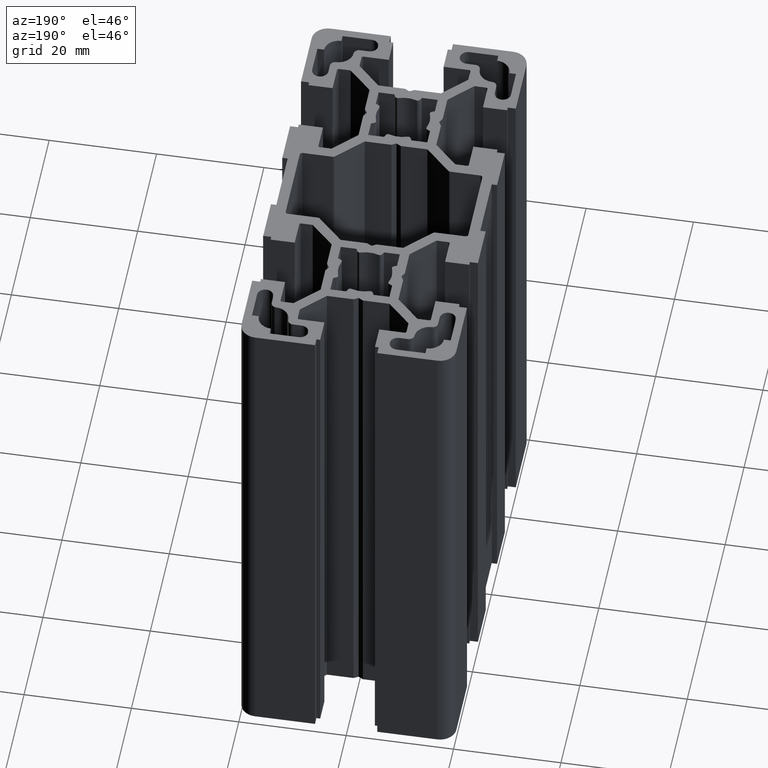
[diagram: clean part render]
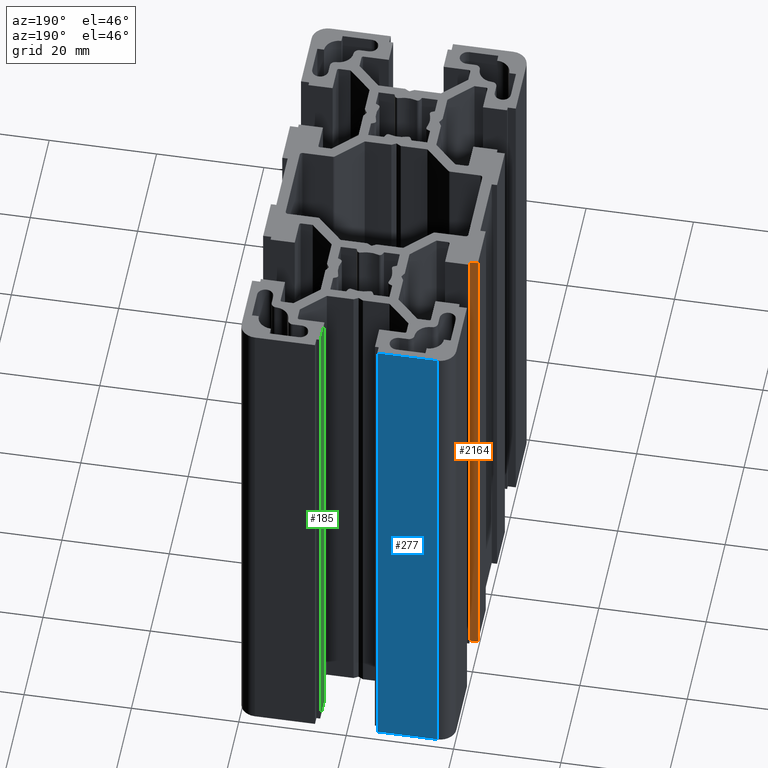
[diagram: same view with three faces highlighted in distinct colors, each labeled with its STEP entity id]
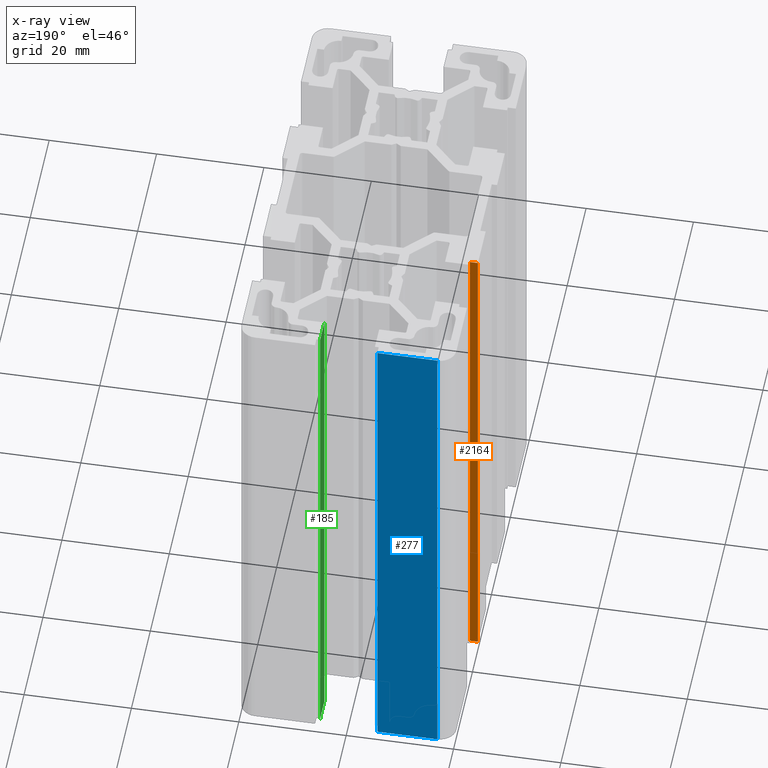
[diagram: x-ray of the same camera — body ghosted, the three highlighted faces saturated]
A machine part, auxiliary view with three faces highlighted in distinct colors.
The next image is the same camera in x-ray (body ghosted, the three faces saturated) — at least one of them is partly hidden behind the body in this view.
Their STEP definitions:

[orange] entity #2164 — the highlighted planar face has unit normal (0, -1, 0).
#1685 = VERTEX_POINT ( 'NONE', #6071 ) ;
#1686 = VERTEX_POINT ( 'NONE', #6070 ) ;
#1688 = EDGE_CURVE ( 'NONE', #1685, #1686, #6063, .T. ) ;
#2145 = ORIENTED_EDGE ( 'NONE', *, *, #2156, .T. ) ;
#2156 = EDGE_CURVE ( 'NONE', #2806, #1685, #6890, .T. ) ;
#2160 = ORIENTED_EDGE ( 'NONE', *, *, #1688, .T. ) ;
#2161 = ORIENTED_EDGE ( 'NONE', *, *, #2165, .F. ) ;
#2162 = EDGE_LOOP ( 'NONE', ( #2160, #2161, #2167, #2145 ) ) ;
#2164 = ADVANCED_FACE ( 'NONE', ( #6891 ), #6885, .F. ) ;
#2165 = EDGE_CURVE ( 'NONE', #2809, #1686, #6876, .T. ) ;
#2167 = ORIENTED_EDGE ( 'NONE', *, *, #2810, .F. ) ;
#2806 = VERTEX_POINT ( 'NONE', #7847 ) ;
#2809 = VERTEX_POINT ( 'NONE', #7834 ) ;
#2810 = EDGE_CURVE ( 'NONE', #2806, #2809, #7835, .T. ) ;
#6060 = DIRECTION ( 'NONE',  ( -1.000000000000000000, 0.0000000000000000000, 0.0000000000000000000 ) ) ;
#6061 = VECTOR ( 'NONE', #6060, 1000.000000000000000 ) ;
#6062 = CARTESIAN_POINT ( 'NONE',  ( -18.50000000000000000, 14.19999980926514000, 0.0000000000000000000 ) ) ;
#6063 = LINE ( 'NONE', #6062, #6061 ) ;
#6070 = CARTESIAN_POINT ( 'NONE',  ( -20.00000000000000000, 14.19999980926514000, 0.0000000000000000000 ) ) ;
#6071 = CARTESIAN_POINT ( 'NONE',  ( -18.50000000000000000, 14.19999980926514000, 0.0000000000000000000 ) ) ;
#6873 = DIRECTION ( 'NONE',  ( -0.0000000000000000000, -0.0000000000000000000, -1.000000000000000000 ) ) ;
#6874 = VECTOR ( 'NONE', #6873, 1000.000000000000000 ) ;
#6875 = CARTESIAN_POINT ( 'NONE',  ( -20.00000000000000000, 14.19999980926514000, 100.0000000000000000 ) ) ;
#6876 = LINE ( 'NONE', #6875, #6874 ) ;
#6877 = DIRECTION ( 'NONE',  ( 0.0000000000000000000, -0.0000000000000000000, -1.000000000000000000 ) ) ;
#6878 = DIRECTION ( 'NONE',  ( 0.0000000000000000000, -1.000000000000000000, 0.0000000000000000000 ) ) ;
#6879 = CARTESIAN_POINT ( 'NONE',  ( -18.50000000000000000, 14.19999980926514000, 100.0000000000000000 ) ) ;
#6884 = AXIS2_PLACEMENT_3D ( 'NONE', #6879, #6878, #6877 ) ;
#6885 = PLANE ( 'NONE',  #6884 ) ;
#6887 = DIRECTION ( 'NONE',  ( -0.0000000000000000000, -0.0000000000000000000, -1.000000000000000000 ) ) ;
#6888 = VECTOR ( 'NONE', #6887, 1000.000000000000000 ) ;
#6889 = CARTESIAN_POINT ( 'NONE',  ( -18.50000000000000000, 14.19999980926514000, 100.0000000000000000 ) ) ;
#6890 = LINE ( 'NONE', #6889, #6888 ) ;
#6891 = FACE_OUTER_BOUND ( 'NONE', #2162, .T. ) ;
#7825 = DIRECTION ( 'NONE',  ( -1.000000000000000000, 0.0000000000000000000, 0.0000000000000000000 ) ) ;
#7826 = VECTOR ( 'NONE', #7825, 1000.000000000000000 ) ;
#7830 = CARTESIAN_POINT ( 'NONE',  ( -18.50000000000000000, 14.19999980926514000, 100.0000000000000000 ) ) ;
#7834 = CARTESIAN_POINT ( 'NONE',  ( -20.00000000000000000, 14.19999980926514000, 100.0000000000000000 ) ) ;
#7835 = LINE ( 'NONE', #7830, #7826 ) ;
#7847 = CARTESIAN_POINT ( 'NONE',  ( -18.50000000000000000, 14.19999980926514000, 100.0000000000000000 ) ) ;

[blue] entity #277 — the highlighted planar face has unit normal (0, -1, 0).
#274 = ORIENTED_EDGE ( 'NONE', *, *, #2006, .F. ) ;
#275 = EDGE_LOOP ( 'NONE', ( #290, #274, #279, #281 ) ) ;
#277 = ADVANCED_FACE ( 'NONE', ( #3655 ), #3666, .F. ) ;
#279 = ORIENTED_EDGE ( 'NONE', *, *, #3201, .F. ) ;
#281 = ORIENTED_EDGE ( 'NONE', *, *, #293, .T. ) ;
#290 = ORIENTED_EDGE ( 'NONE', *, *, #1370, .T. ) ;
#293 = EDGE_CURVE ( 'NONE', #3105, #1377, #3693, .T. ) ;
#1370 = EDGE_CURVE ( 'NONE', #1377, #1371, #5524, .T. ) ;
#1371 = VERTEX_POINT ( 'NONE', #5526 ) ;
#1377 = VERTEX_POINT ( 'NONE', #5566 ) ;
#2006 = EDGE_CURVE ( 'NONE', #2886, #1371, #6643, .T. ) ;
#2886 = VERTEX_POINT ( 'NONE', #7934 ) ;
#3105 = VERTEX_POINT ( 'NONE', #8310 ) ;
#3201 = EDGE_CURVE ( 'NONE', #3105, #2886, #8259, .T. ) ;
#3654 = CARTESIAN_POINT ( 'NONE',  ( -5.800000190734862400, 40.00000000000000000, 100.0000000000000000 ) ) ;
#3655 = FACE_OUTER_BOUND ( 'NONE', #275, .T. ) ;
#3659 = AXIS2_PLACEMENT_3D ( 'NONE', #3654, #3704, #3703 ) ;
#3666 = PLANE ( 'NONE',  #3659 ) ;
#3689 = DIRECTION ( 'NONE',  ( -0.0000000000000000000, -0.0000000000000000000, -1.000000000000000000 ) ) ;
#3690 = VECTOR ( 'NONE', #3689, 1000.000000000000000 ) ;
#3691 = CARTESIAN_POINT ( 'NONE',  ( -5.800000190734862400, 40.00000000000000000, 100.0000000000000000 ) ) ;
#3693 = LINE ( 'NONE', #3691, #3690 ) ;
#3703 = DIRECTION ( 'NONE',  ( 0.0000000000000000000, -0.0000000000000000000, -1.000000000000000000 ) ) ;
#3704 = DIRECTION ( 'NONE',  ( 0.0000000000000000000, -1.000000000000000000, 0.0000000000000000000 ) ) ;
#5521 = DIRECTION ( 'NONE',  ( -1.000000000000000000, 0.0000000000000000000, 0.0000000000000000000 ) ) ;
#5522 = VECTOR ( 'NONE', #5521, 1000.000000000000000 ) ;
#5523 = CARTESIAN_POINT ( 'NONE',  ( -5.800000190734862400, 40.00000000000000000, 0.0000000000000000000 ) ) ;
#5524 = LINE ( 'NONE', #5523, #5522 ) ;
#5526 = CARTESIAN_POINT ( 'NONE',  ( -17.00000000000000000, 40.00000000000000000, 0.0000000000000000000 ) ) ;
#5566 = CARTESIAN_POINT ( 'NONE',  ( -5.800000190734862400, 40.00000000000000000, 0.0000000000000000000 ) ) ;
#6640 = DIRECTION ( 'NONE',  ( -0.0000000000000000000, -0.0000000000000000000, -1.000000000000000000 ) ) ;
#6641 = VECTOR ( 'NONE', #6640, 1000.000000000000000 ) ;
#6642 = CARTESIAN_POINT ( 'NONE',  ( -17.00000000000000000, 40.00000000000000000, 100.0000000000000000 ) ) ;
#6643 = LINE ( 'NONE', #6642, #6641 ) ;
#7934 = CARTESIAN_POINT ( 'NONE',  ( -17.00000000000000000, 40.00000000000000000, 100.0000000000000000 ) ) ;
#8251 = CARTESIAN_POINT ( 'NONE',  ( -5.800000190734862400, 40.00000000000000000, 100.0000000000000000 ) ) ;
#8259 = LINE ( 'NONE', #8251, #8261 ) ;
#8261 = VECTOR ( 'NONE', #8265, 1000.000000000000000 ) ;
#8265 = DIRECTION ( 'NONE',  ( -1.000000000000000000, 0.0000000000000000000, 0.0000000000000000000 ) ) ;
#8310 = CARTESIAN_POINT ( 'NONE',  ( -5.800000190734862400, 40.00000000000000000, 100.0000000000000000 ) ) ;

[green] entity #185 — the highlighted planar face has unit normal (1, 0, -0).
#183 = EDGE_CURVE ( 'NONE', #3173, #1389, #3546, .T. ) ;
#184 = ORIENTED_EDGE ( 'NONE', *, *, #183, .F. ) ;
#185 = ADVANCED_FACE ( 'NONE', ( #3556 ), #3549, .F. ) ;
#186 = ORIENTED_EDGE ( 'NONE', *, *, #1396, .T. ) ;
#188 = ORIENTED_EDGE ( 'NONE', *, *, #200, .T. ) ;
#189 = ORIENTED_EDGE ( 'NONE', *, *, #3214, .F. ) ;
#197 = EDGE_LOOP ( 'NONE', ( #186, #184, #189, #188 ) ) ;
#200 = EDGE_CURVE ( 'NONE', #3157, #1398, #3577, .T. ) ;
#1389 = VERTEX_POINT ( 'NONE', #5589 ) ;
#1396 = EDGE_CURVE ( 'NONE', #1398, #1389, #5572, .T. ) ;
#1398 = VERTEX_POINT ( 'NONE', #5573 ) ;
#3157 = VERTEX_POINT ( 'NONE', #8436 ) ;
#3173 = VERTEX_POINT ( 'NONE', #8475 ) ;
#3214 = EDGE_CURVE ( 'NONE', #3157, #3173, #8555, .T. ) ;
#3526 = DIRECTION ( 'NONE',  ( -2.698458740408368300E-015, 1.000000000000000000, 0.0000000000000000000 ) ) ;
#3528 = DIRECTION ( 'NONE',  ( 1.000000000000000000, 2.698458740408368300E-015, -0.0000000000000000000 ) ) ;
#3529 = CARTESIAN_POINT ( 'NONE',  ( 5.100000000000013900, 34.00000000000000000, 100.0000000000000000 ) ) ;
#3534 = DIRECTION ( 'NONE',  ( -0.0000000000000000000, -0.0000000000000000000, -1.000000000000000000 ) ) ;
#3535 = VECTOR ( 'NONE', #3534, 1000.000000000000000 ) ;
#3536 = CARTESIAN_POINT ( 'NONE',  ( 5.100000000000013900, 34.00000000000000000, 100.0000000000000000 ) ) ;
#3537 = AXIS2_PLACEMENT_3D ( 'NONE', #3529, #3528, #3526 ) ;
#3546 = LINE ( 'NONE', #3536, #3535 ) ;
#3549 = PLANE ( 'NONE',  #3537 ) ;
#3556 = FACE_OUTER_BOUND ( 'NONE', #197, .T. ) ;
#3573 = DIRECTION ( 'NONE',  ( -0.0000000000000000000, -0.0000000000000000000, -1.000000000000000000 ) ) ;
#3574 = VECTOR ( 'NONE', #3573, 1000.000000000000000 ) ;
#3575 = CARTESIAN_POINT ( 'NONE',  ( 5.100000000000002300, 38.50000000000000000, 100.0000000000000000 ) ) ;
#3577 = LINE ( 'NONE', #3575, #3574 ) ;
#5569 = DIRECTION ( 'NONE',  ( 2.698458740408368300E-015, -1.000000000000000000, -0.0000000000000000000 ) ) ;
#5570 = VECTOR ( 'NONE', #5569, 1000.000000000000000 ) ;
#5572 = LINE ( 'NONE', #5582, #5570 ) ;
#5573 = CARTESIAN_POINT ( 'NONE',  ( 5.100000000000002300, 38.50000000000000000, 0.0000000000000000000 ) ) ;
#5582 = CARTESIAN_POINT ( 'NONE',  ( 5.100000000000013900, 34.00000000000000000, 0.0000000000000000000 ) ) ;
#5589 = CARTESIAN_POINT ( 'NONE',  ( 5.100000000000013900, 34.00000000000000000, 0.0000000000000000000 ) ) ;
#8436 = CARTESIAN_POINT ( 'NONE',  ( 5.100000000000002300, 38.50000000000000000, 100.0000000000000000 ) ) ;
#8475 = CARTESIAN_POINT ( 'NONE',  ( 5.100000000000013900, 34.00000000000000000, 100.0000000000000000 ) ) ;
#8552 = DIRECTION ( 'NONE',  ( 2.698458740408368300E-015, -1.000000000000000000, -0.0000000000000000000 ) ) ;
#8553 = VECTOR ( 'NONE', #8552, 1000.000000000000000 ) ;
#8554 = CARTESIAN_POINT ( 'NONE',  ( 5.100000000000013900, 34.00000000000000000, 100.0000000000000000 ) ) ;
#8555 = LINE ( 'NONE', #8554, #8553 ) ;